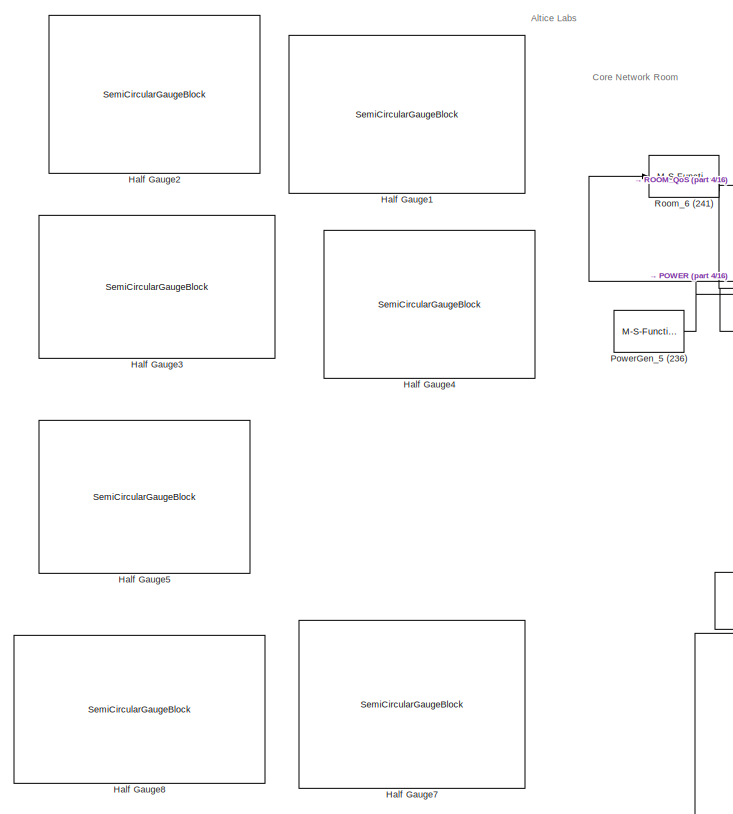
[diagram: root canvas - part 1/16, top left region]
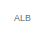
[diagram: root canvas - part 2/16, top center region]
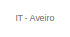
[diagram: root canvas - part 3/16, top center region]
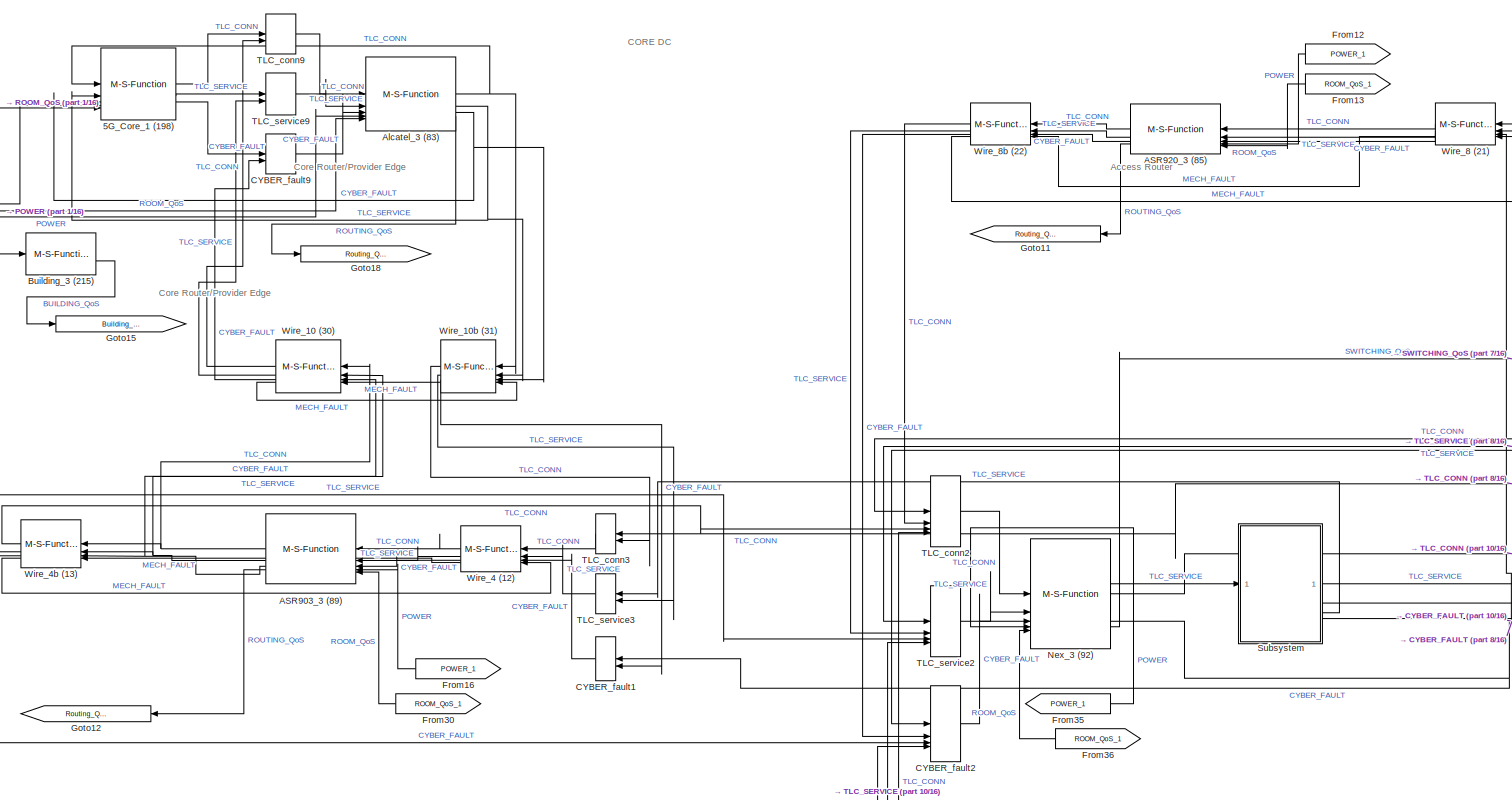
[diagram: root canvas - part 4/16, top left region]
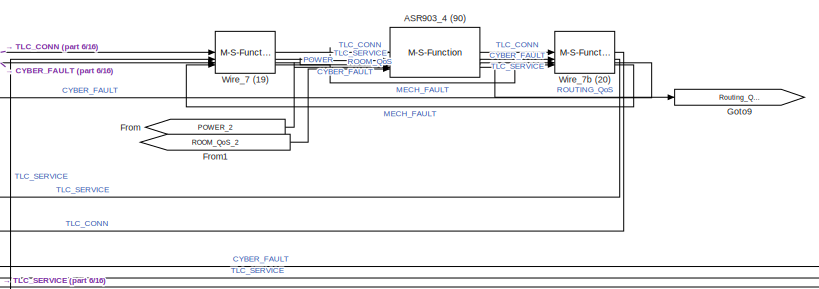
[diagram: root canvas - part 5/16, top right region]
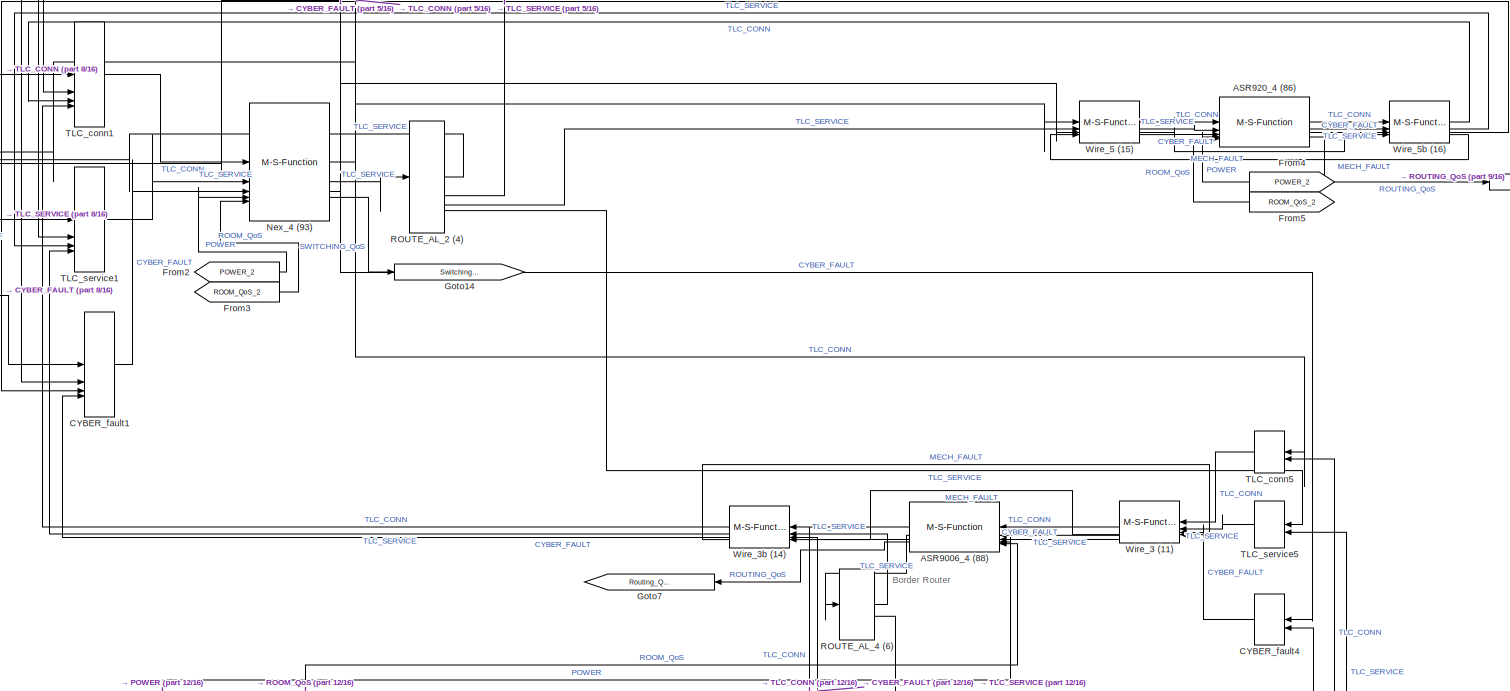
[diagram: root canvas - part 6/16, middle right region]
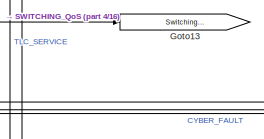
[diagram: root canvas - part 7/16, top center region]
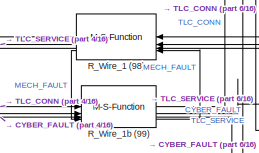
[diagram: root canvas - part 8/16, top center region]
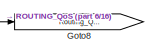
[diagram: root canvas - part 9/16, top right region]
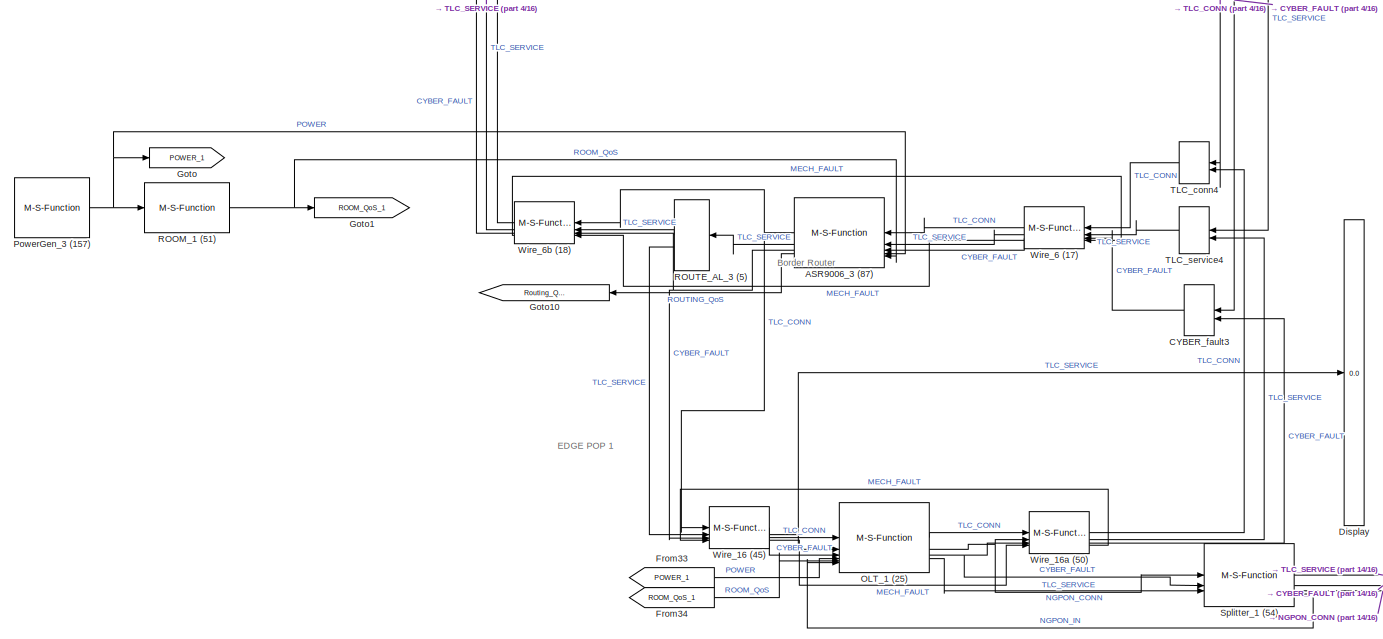
[diagram: root canvas - part 10/16, central region]
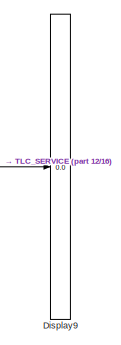
[diagram: root canvas - part 11/16, middle right region]
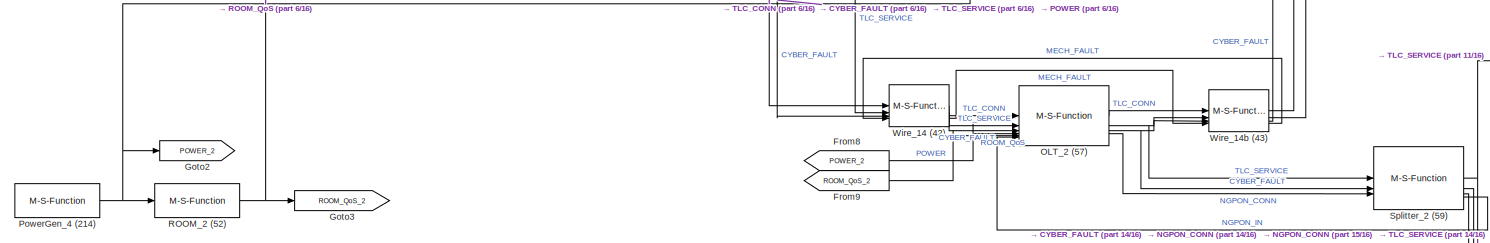
[diagram: root canvas - part 12/16, middle right region]
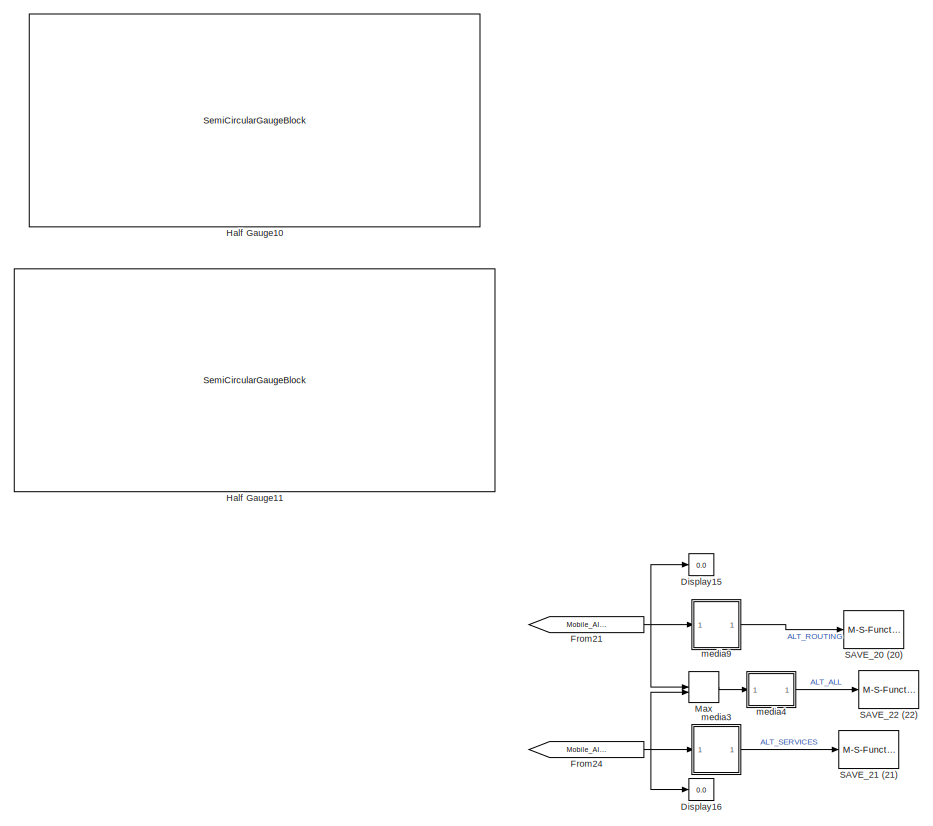
[diagram: root canvas - part 13/16, bottom left region]
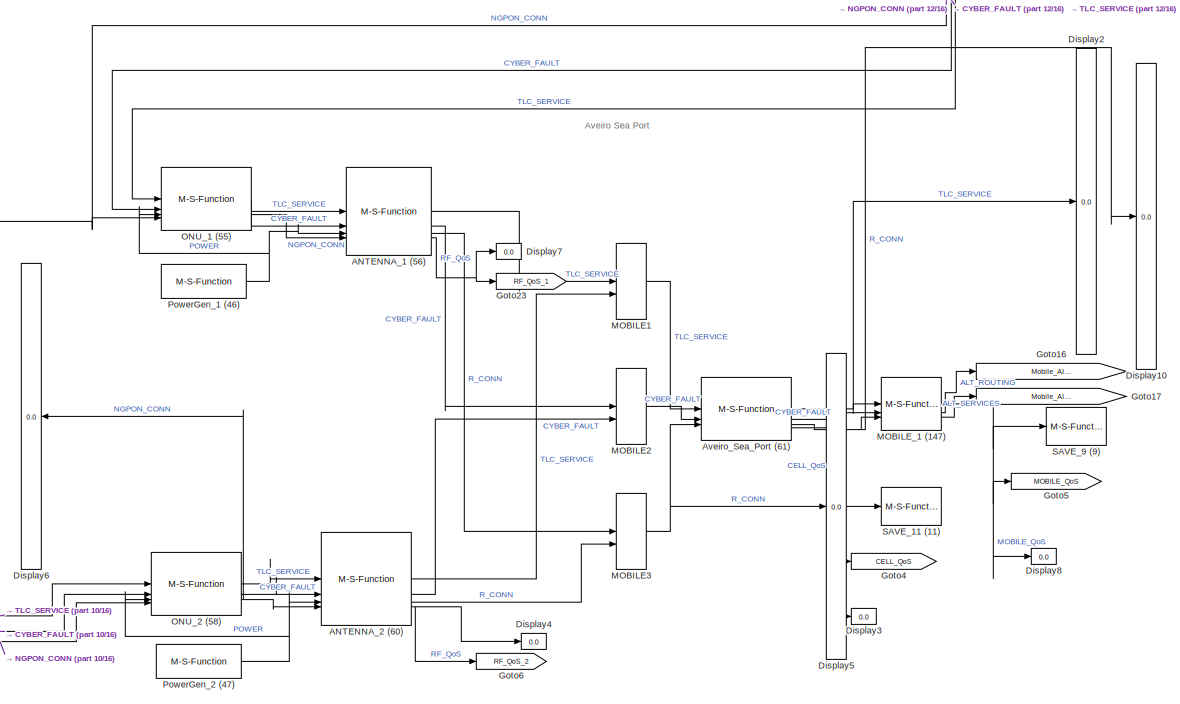
[diagram: root canvas - part 14/16, bottom right region]
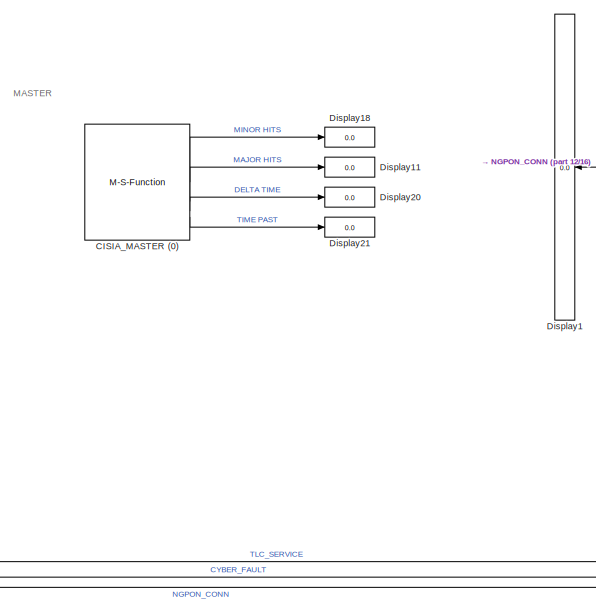
[diagram: root canvas - part 15/16, bottom right region]
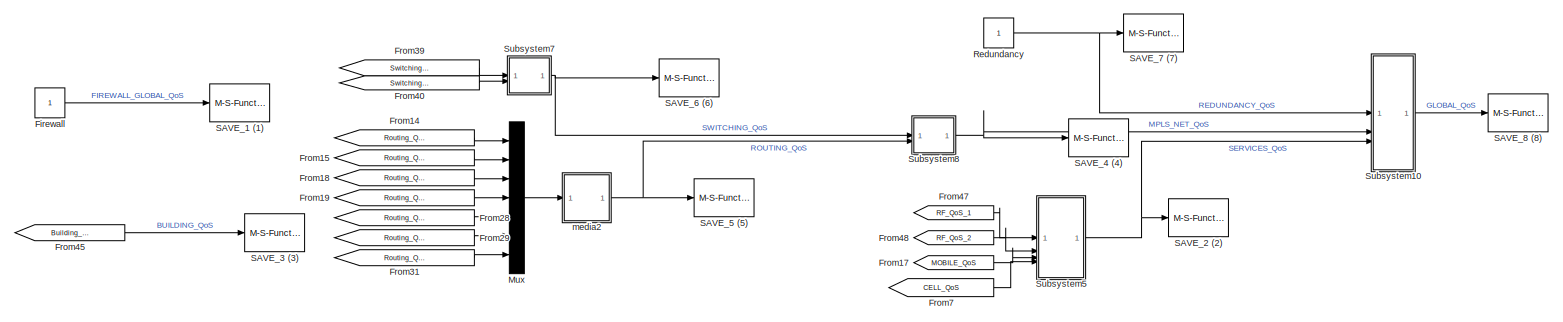
[diagram: root canvas - part 16/16, bottom center region]
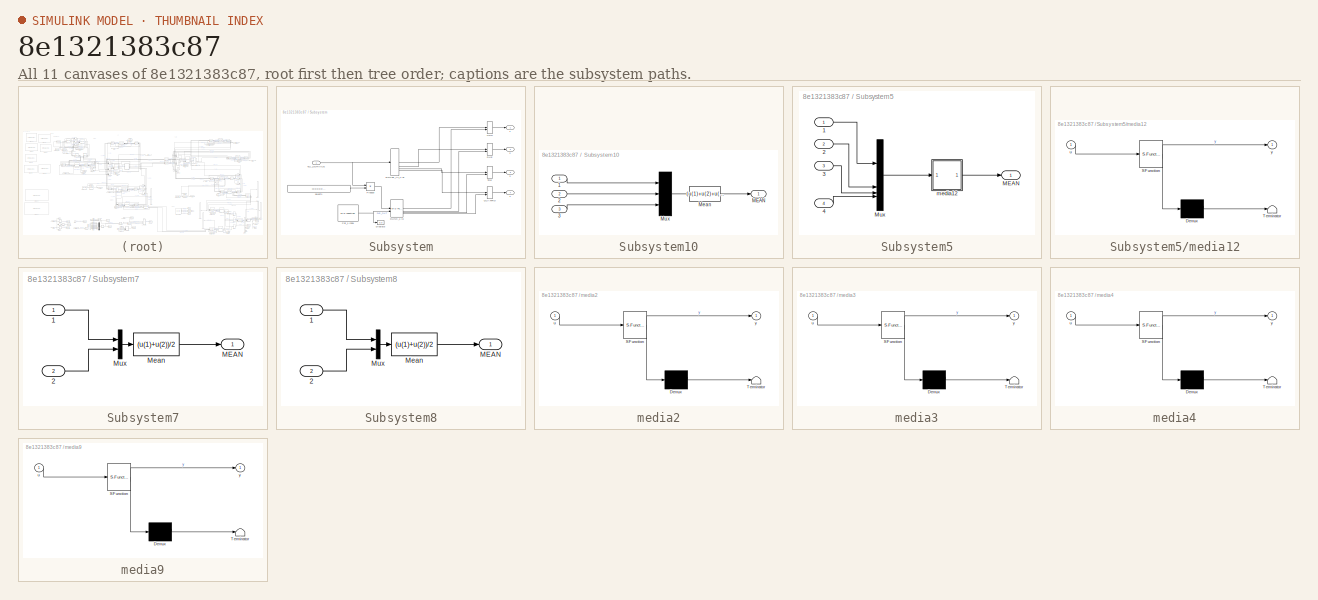
[diagram: thumbnail index - all 11 canvases of the model, root first then tree order]
MODEL slx_8e1321383c87
KIND model
CONFIG AbsTol = auto
CONFIG EnableMultiTasking = off
CONFIG FixedStep = auto
CONFIG MaxStep = auto
CONFIG MinStep = auto
CONFIG RelTol = 1e-3
CONFIG SampleTimeConstraint = Unconstrained
CONFIG SolverName = VariableStepAuto
CONFIG StartTime = 0.0
CONFIG StopTime = 2.0
BLOCK [M-S-Function] 5G_Core_1 (198)
  FunctionName = cisia_msfun
  Parameters = Parameter1, Parameter2, Parameter3, resources, Parameter10, codeupdate, step_received, step_computed, dynamic_computed, step_sended, id_entity, id_project, id_type, name_type, color
BLOCK [M-S-Function] ANTENNA_1 (56)
  FunctionName = cisia_msfun
  Parameters = Parameter1, Parameter2, Parameter3, resources, Parameter10, codeupdate, step_received, step_computed, dynamic_computed, step_sended, id_entity, id_project, id_type, name_type, color
BLOCK [M-S-Function] ANTENNA_2 (60)
  FunctionName = cisia_msfun
  Parameters = Parameter1, Parameter2, Parameter3, resources, Parameter10, codeupdate, step_received, step_computed, dynamic_computed, step_sended, id_entity, id_project, id_type, name_type, color
BLOCK [M-S-Function] ASR9006_3 (87)
  FunctionName = cisia_msfun
  NameLocation = top
  Parameters = Parameter1, Parameter2, Parameter3, resources, Parameter10, codeupdate, step_received, step_computed, dynamic_computed, step_sended, id_entity, id_project, id_type, name_type, color
BLOCK [M-S-Function] ASR9006_4 (88)
  FunctionName = cisia_msfun
  Parameters = Parameter1, Parameter2, Parameter3, resources, Parameter10, codeupdate, step_received, step_computed, dynamic_computed, step_sended, id_entity, id_project, id_type, name_type, color
BLOCK [M-S-Function] ASR903_3 (89)
  FunctionName = cisia_msfun
  NameLocation = top
  Parameters = Parameter1, Parameter2, Parameter3, resources, Parameter10, codeupdate, step_received, step_computed, dynamic_computed, step_sended, id_entity, id_project, id_type, name_type, color
BLOCK [M-S-Function] ASR903_4 (90)
  FunctionName = cisia_msfun
  NameLocation = top
  Parameters = Parameter1, Parameter2, Parameter3, resources, Parameter10, codeupdate, step_received, step_computed, dynamic_computed, step_sended, id_entity, id_project, id_type, name_type, color
BLOCK [M-S-Function] ASR920_3 (85)
  FunctionName = cisia_msfun
  NameLocation = top
  Parameters = Parameter1, Parameter2, Parameter3, resources, Parameter10, codeupdate, step_received, step_computed, dynamic_computed, step_sended, id_entity, id_project, id_type, name_type, color
BLOCK [M-S-Function] ASR920_4 (86)
  FunctionName = cisia_msfun
  NameLocation = top
  Parameters = Parameter1, Parameter2, Parameter3, resources, Parameter10, codeupdate, step_received, step_computed, dynamic_computed, step_sended, id_entity, id_project, id_type, name_type, color
BLOCK [M-S-Function] Alcatel_3 (83)
  FunctionName = cisia_msfun
  Parameters = Parameter1, Parameter2, Parameter3, resources, Parameter10, codeupdate, step_received, step_computed, dynamic_computed, step_sended, id_entity, id_project, id_type, name_type, color
BLOCK [M-S-Function] Aveiro_Sea_Port (61)
  FunctionName = cisia_msfun
  Parameters = Parameter1, Parameter2, Parameter3, resources, Parameter10, codeupdate, step_received, step_computed, dynamic_computed, step_sended, id_entity, id_project, id_type, name_type, color
BLOCK [M-S-Function] Building_3 (215)
  FunctionName = cisia_msfun
  Parameters = Parameter1, Parameter2, Parameter3, resources, Parameter10, codeupdate, step_received, step_computed, dynamic_computed, step_sended, id_entity, id_project, id_type, name_type, color
BLOCK [M-S-Function] CISIA_MASTER (0)
  FunctionName = cisia_msfun
  Parameters = Parameter1, Parameter2, Parameter3, resources, Parameter4, Parameter5, Parameter6, Parameter7, Parameter8, Parameter9,Parameter11,Parameter12
BLOCK [MinMax] CYBER_fault1
  Function = max
  Inputs = 2
  NameLocation = top
BLOCK [MinMax] CYBER_fault1 
  Function = max
  Inputs = 4
BLOCK [MinMax] CYBER_fault2
  Function = max
  Inputs = 4
BLOCK [MinMax] CYBER_fault3
  Function = max
  Inputs = 2
  NameLocation = top
BLOCK [MinMax] CYBER_fault4
  Function = max
  Inputs = 2
  NameLocation = top
BLOCK [MinMax] CYBER_fault9
  Function = max
  Inputs = 2
BLOCK [Display] Display
  Decimation = 1
BLOCK [Display] Display1
  Decimation = 1
  NameLocation = top
BLOCK [Display] Display10
  Decimation = 1
BLOCK [Display] Display11
  Decimation = 1
BLOCK [Display] Display15
  Decimation = 1
BLOCK [Display] Display16
  Decimation = 1
BLOCK [Display] Display18
  Decimation = 1
BLOCK [Display] Display2
  Decimation = 1
BLOCK [Display] Display20
  Decimation = 1
BLOCK [Display] Display21
  Decimation = 1
BLOCK [Display] Display3
  Decimation = 1
BLOCK [Display] Display4
  Decimation = 1
BLOCK [Display] Display5
  Decimation = 1
BLOCK [Display] Display6
  Decimation = 1
  NameLocation = top
BLOCK [Display] Display7
  Decimation = 1
BLOCK [Display] Display8
  Decimation = 1
BLOCK [Display] Display9
  Decimation = 1
BLOCK [Constant] Firewall
BLOCK [From] From
  GotoTag = POWER_2
  IconDisplay = Tag and signal name
BLOCK [From] From1
  GotoTag = ROOM_QoS_2
  IconDisplay = Tag and signal name
BLOCK [From] From12
  GotoTag = POWER_1
  NameLocation = top
  TagVisibility = global
BLOCK [From] From13
  GotoTag = ROOM_QoS_1
  NameLocation = top
BLOCK [From] From14
  GotoTag = Routing_QoS_9006_3
BLOCK [From] From15
  GotoTag = Routing_QoS_9006_2
BLOCK [From] From16
  GotoTag = POWER_1
  NameLocation = top
  TagVisibility = global
BLOCK [From] From17
  GotoTag = MOBILE_QoS
BLOCK [From] From18
  GotoTag = Routing_QoS_903_3
BLOCK [From] From19
  GotoTag = Routing_QoS_903_4
BLOCK [From] From2
  GotoTag = POWER_2
BLOCK [From] From21
  GotoTag = Mobile_Alt_Route_1
BLOCK [From] From24
  GotoTag = Mobile_Alt_Serv_1
BLOCK [From] From28
  GotoTag = Routing_QoS_920_3
BLOCK [From] From29
  GotoTag = Routing_QoS_920_4
BLOCK [From] From3
  GotoTag = ROOM_QoS_2
BLOCK [From] From30
  GotoTag = ROOM_QoS_1
  NameLocation = top
BLOCK [From] From31
  GotoTag = Routing_QoS_Alcatel_3
BLOCK [From] From33
  GotoTag = POWER_1
  TagVisibility = global
BLOCK [From] From34
  GotoTag = ROOM_QoS_1
BLOCK [From] From35
  GotoTag = POWER_1
  TagVisibility = global
BLOCK [From] From36
  GotoTag = ROOM_QoS_1
  NameLocation = top
BLOCK [From] From39
  GotoTag = Switching_QoS_Nex_3
BLOCK [From] From4
  GotoTag = POWER_2
  NameLocation = top
BLOCK [From] From40
  GotoTag = Switching_QoS_Nex_4
BLOCK [From] From45
  GotoTag = Building_QoS_1
BLOCK [From] From47
  GotoTag = RF_QoS_1
BLOCK [From] From48
  GotoTag = RF_QoS_2
BLOCK [From] From5
  GotoTag = ROOM_QoS_2
  NameLocation = top
BLOCK [From] From7
  GotoTag = CELL_QoS
BLOCK [From] From8
  GotoTag = POWER_2
BLOCK [From] From9
  GotoTag = ROOM_QoS_2
BLOCK [Goto] Goto
  GotoTag = POWER_1
  TagVisibility = global
BLOCK [Goto] Goto1
  GotoTag = ROOM_QoS_1
BLOCK [Goto] Goto10
  GotoTag = Routing_QoS_9006_3
  NameLocation = top
BLOCK [Goto] Goto11
  GotoTag = Routing_QoS_920_3
  NameLocation = top
BLOCK [Goto] Goto12
  GotoTag = Routing_QoS_903_3
  NameLocation = top
BLOCK [Goto] Goto13
  GotoTag = Switching_QoS_Nex_3
BLOCK [Goto] Goto14
  GotoTag = Switching_QoS_Nex_4
BLOCK [Goto] Goto15
  GotoTag = Building_QoS_1
BLOCK [Goto] Goto16
  GotoTag = Mobile_Alt_Route_1
BLOCK [Goto] Goto17
  GotoTag = Mobile_Alt_Serv_1
BLOCK [Goto] Goto18
  GotoTag = Routing_QoS_Alcatel_3
BLOCK [Goto] Goto2
  GotoTag = POWER_2
BLOCK [Goto] Goto23
  GotoTag = RF_QoS_1
BLOCK [Goto] Goto3
  GotoTag = ROOM_QoS_2
BLOCK [Goto] Goto4
  GotoTag = CELL_QoS
BLOCK [Goto] Goto5
  GotoTag = MOBILE_QoS
BLOCK [Goto] Goto6
  GotoTag = RF_QoS_2
BLOCK [Goto] Goto7
  GotoTag = Routing_QoS_9006_2
  NameLocation = top
BLOCK [Goto] Goto8
  GotoTag = Routing_QoS_920_4
BLOCK [Goto] Goto9
  GotoTag = Routing_QoS_903_4
BLOCK [SemiCircularGaugeBlock] Half Gauge1
  ScaleMax = 1
BLOCK [SemiCircularGaugeBlock] Half Gauge10
  ScaleMax = 1
BLOCK [SemiCircularGaugeBlock] Half Gauge11
  ScaleMax = 1
BLOCK [SemiCircularGaugeBlock] Half Gauge2
  ScaleMax = 1
BLOCK [SemiCircularGaugeBlock] Half Gauge3
  ScaleMax = 1
BLOCK [SemiCircularGaugeBlock] Half Gauge4
  ScaleMax = 1
BLOCK [SemiCircularGaugeBlock] Half Gauge5
  ScaleMax = 1
BLOCK [SemiCircularGaugeBlock] Half Gauge7
  ScaleMax = 1
BLOCK [SemiCircularGaugeBlock] Half Gauge8
  ScaleMax = 1
BLOCK [MinMax] MOBILE1
  Function = max
  Inputs = 2
BLOCK [MinMax] MOBILE2
  Function = max
  Inputs = 2
BLOCK [MinMax] MOBILE3
  Function = max
  Inputs = 2
BLOCK [M-S-Function] MOBILE_1 (147)
  FunctionName = cisia_msfun
  Parameters = Parameter1, Parameter2, Parameter3, resources, Parameter10, codeupdate, step_received, step_computed, dynamic_computed, step_sended, id_entity, id_project, id_type, name_type, color
BLOCK [MinMax] Max
  Function = max
  Inputs = 2
BLOCK [Mux] Mux
  DisplayOption = bar
  Inputs = 7
BLOCK [M-S-Function] Nex_3 (92)
  FunctionName = cisia_msfun
  Parameters = Parameter1, Parameter2, Parameter3, resources, Parameter10, codeupdate, step_received, step_computed, dynamic_computed, step_sended, id_entity, id_project, id_type, name_type, color
BLOCK [M-S-Function] Nex_4 (93)
  FunctionName = cisia_msfun
  Parameters = Parameter1, Parameter2, Parameter3, resources, Parameter10, codeupdate, step_received, step_computed, dynamic_computed, step_sended, id_entity, id_project, id_type, name_type, color
BLOCK [M-S-Function] OLT_1 (25)
  FunctionName = cisia_msfun
  Parameters = Parameter1, Parameter2, Parameter3, resources, Parameter10, codeupdate, step_received, step_computed, dynamic_computed, step_sended, id_entity, id_project, id_type, name_type, color
BLOCK [M-S-Function] OLT_2 (57)
  FunctionName = cisia_msfun
  Parameters = Parameter1, Parameter2, Parameter3, resources, Parameter10, codeupdate, step_received, step_computed, dynamic_computed, step_sended, id_entity, id_project, id_type, name_type, color
BLOCK [M-S-Function] ONU_1 (55)
  FunctionName = cisia_msfun
  Parameters = Parameter1, Parameter2, Parameter3, resources, Parameter10, codeupdate, step_received, step_computed, dynamic_computed, step_sended, id_entity, id_project, id_type, name_type, color
BLOCK [M-S-Function] ONU_2 (58)
  FunctionName = cisia_msfun
  Parameters = Parameter1, Parameter2, Parameter3, resources, Parameter10, codeupdate, step_received, step_computed, dynamic_computed, step_sended, id_entity, id_project, id_type, name_type, color
BLOCK [M-S-Function] PowerGen_1 (46)
  FunctionName = cisia_msfun
  Parameters = Parameter1, Parameter2, Parameter3, resources, Parameter10, codeupdate, step_received, step_computed, dynamic_computed, step_sended, id_entity, id_project, id_type, name_type, color
BLOCK [M-S-Function] PowerGen_2 (47)
  FunctionName = cisia_msfun
  Parameters = Parameter1, Parameter2, Parameter3, resources, Parameter10, codeupdate, step_received, step_computed, dynamic_computed, step_sended, id_entity, id_project, id_type, name_type, color
BLOCK [M-S-Function] PowerGen_3 (157)
  FunctionName = cisia_msfun
  Parameters = Parameter1, Parameter2, Parameter3, resources, Parameter10, codeupdate, step_received, step_computed, dynamic_computed, step_sended, id_entity, id_project, id_type, name_type, color
BLOCK [M-S-Function] PowerGen_4 (214)
  FunctionName = cisia_msfun
  Parameters = Parameter1, Parameter2, Parameter3, resources, Parameter10, codeupdate, step_received, step_computed, dynamic_computed, step_sended, id_entity, id_project, id_type, name_type, color
BLOCK [M-S-Function] PowerGen_5 (236)
  FunctionName = cisia_msfun
  Parameters = Parameter1, Parameter2, Parameter3, resources, Parameter10, codeupdate, step_received, step_computed, dynamic_computed, step_sended, id_entity, id_project, id_type, name_type, color
BLOCK [M-S-Function] ROOM_1 (51)
  FunctionName = cisia_msfun
  Parameters = Parameter1, Parameter2, Parameter3, resources, Parameter10, codeupdate, step_received, step_computed, dynamic_computed, step_sended, id_entity, id_project, id_type, name_type, color
BLOCK [M-S-Function] ROOM_2 (52)
  FunctionName = cisia_msfun
  Parameters = Parameter1, Parameter2, Parameter3, resources, Parameter10, codeupdate, step_received, step_computed, dynamic_computed, step_sended, id_entity, id_project, id_type, name_type, color
BLOCK [M-S-Function] ROUTE_AL_2 (4)
  FunctionName = cisia_msfun
  Parameters = Parameter1, Parameter2, Parameter3, Parameter4, Parameter5, Parameter6, Parameter7
BLOCK [M-S-Function] ROUTE_AL_3 (5)
  FunctionName = cisia_msfun
  NameLocation = top
  Parameters = Parameter1, Parameter2, Parameter3, Parameter4, Parameter5, Parameter6, Parameter7
BLOCK [M-S-Function] ROUTE_AL_4 (6)
  FunctionName = cisia_msfun
  Parameters = Parameter1, Parameter2, Parameter3, Parameter4, Parameter5, Parameter6, Parameter7
BLOCK [M-S-Function] R_Wire_1 (98)
  FunctionName = cisia_msfun
  NameLocation = top
  Parameters = Parameter1, Parameter2, Parameter3, resources, Parameter10, codeupdate, step_received, step_computed, dynamic_computed, step_sended, id_entity, id_project, id_type, name_type, color
BLOCK [M-S-Function] R_Wire_1b (99)
  FunctionName = cisia_msfun
  Parameters = Parameter1, Parameter2, Parameter3, resources, Parameter10, codeupdate, step_received, step_computed, dynamic_computed, step_sended, id_entity, id_project, id_type, name_type, color
BLOCK [Constant] Redundancy
BLOCK [M-S-Function] Room_6 (241)
  FunctionName = cisia_msfun
  Parameters = Parameter1, Parameter2, Parameter3, resources, Parameter10, codeupdate, step_received, step_computed, dynamic_computed, step_sended, id_entity, id_project, id_type, name_type, color
BLOCK [M-S-Function] SAVE_1 (1)
  FunctionName = cisia_msfun
  Parameters = Parameter1, Parameter2, Parameter3, Parameter4,Parameter5,Parameter6,Parameter7
BLOCK [M-S-Function] SAVE_11 (11)
  FunctionName = cisia_msfun
  Parameters = Parameter1, Parameter2, Parameter3, Parameter4,Parameter5,Parameter6,Parameter7
BLOCK [M-S-Function] SAVE_2 (2)
  FunctionName = cisia_msfun
  Parameters = Parameter1, Parameter2, Parameter3, Parameter4,Parameter5,Parameter6,Parameter7
BLOCK [M-S-Function] SAVE_20 (20)
  FunctionName = cisia_msfun
  Parameters = Parameter1, Parameter2, Parameter3, Parameter4,Parameter5,Parameter6,Parameter7
BLOCK [M-S-Function] SAVE_21 (21)
  FunctionName = cisia_msfun
  Parameters = Parameter1, Parameter2, Parameter3, Parameter4,Parameter5,Parameter6,Parameter7
BLOCK [M-S-Function] SAVE_22 (22)
  FunctionName = cisia_msfun
  Parameters = Parameter1, Parameter2, Parameter3, Parameter4,Parameter5,Parameter6,Parameter7
BLOCK [M-S-Function] SAVE_3 (3)
  FunctionName = cisia_msfun
  Parameters = Parameter1, Parameter2, Parameter3, Parameter4,Parameter5,Parameter6,Parameter7
BLOCK [M-S-Function] SAVE_4 (4)
  FunctionName = cisia_msfun
  Parameters = Parameter1, Parameter2, Parameter3, Parameter4,Parameter5,Parameter6,Parameter7
BLOCK [M-S-Function] SAVE_5 (5)
  FunctionName = cisia_msfun
  Parameters = Parameter1, Parameter2, Parameter3, Parameter4,Parameter5,Parameter6,Parameter7
BLOCK [M-S-Function] SAVE_6 (6)
  FunctionName = cisia_msfun
  Parameters = Parameter1, Parameter2, Parameter3, Parameter4,Parameter5,Parameter6,Parameter7
BLOCK [M-S-Function] SAVE_7 (7)
  FunctionName = cisia_msfun
  Parameters = Parameter1, Parameter2, Parameter3, Parameter4,Parameter5,Parameter6,Parameter7
BLOCK [M-S-Function] SAVE_8 (8)
  FunctionName = cisia_msfun
  Parameters = Parameter1, Parameter2, Parameter3, Parameter4,Parameter5,Parameter6,Parameter7
BLOCK [M-S-Function] SAVE_9 (9)
  FunctionName = cisia_msfun
  Parameters = Parameter1, Parameter2, Parameter3, Parameter4,Parameter5,Parameter6,Parameter7
BLOCK [M-S-Function] Splitter_1 (54)
  FunctionName = cisia_msfun
  Parameters = Parameter1, Parameter2, Parameter3, resources, Parameter10, codeupdate, step_received, step_computed, dynamic_computed, step_sended, id_entity, id_project, id_type, name_type, color
BLOCK [M-S-Function] Splitter_2 (59)
  FunctionName = cisia_msfun
  Parameters = Parameter1, Parameter2, Parameter3, resources, Parameter10, codeupdate, step_received, step_computed, dynamic_computed, step_sended, id_entity, id_project, id_type, name_type, color
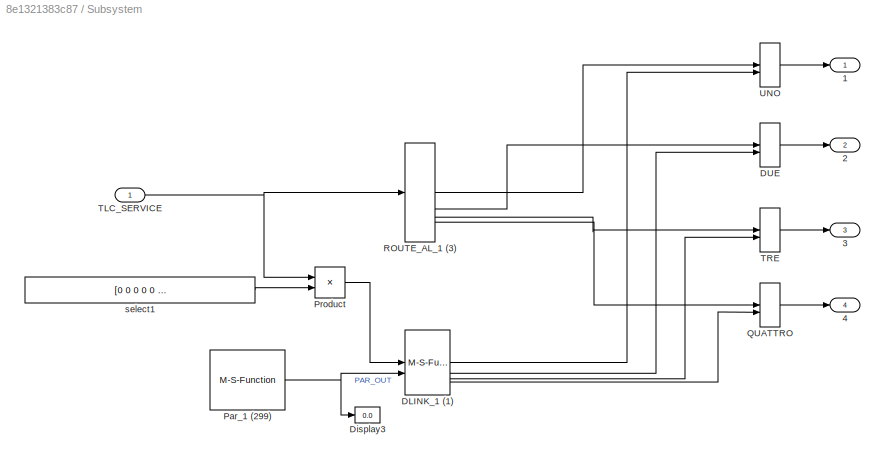
BLOCK [SubSystem] Subsystem
BLOCK [Outport] Subsystem/1
BLOCK [Outport] Subsystem/2
  NameLocation = top
  Port = 2
BLOCK [Outport] Subsystem/3
  NameLocation = top
  Port = 3
BLOCK [Outport] Subsystem/4
  NameLocation = top
  Port = 4
BLOCK [M-S-Function] Subsystem/DLINK_1 (1)
  FunctionName = cisia_msfun
  Parameters = Parameter1, Parameter2, Parameter3, Parameter4, Parameter5, Parameter6, Parameter7
BLOCK [MinMax] Subsystem/DUE
  Function = max
  Inputs = 2
BLOCK [Display] Subsystem/Display3
  Decimation = 1
BLOCK [M-S-Function] Subsystem/Par_1 (299)
  FunctionName = cisia_msfun
  Parameters = Parameter1, Parameter2, Parameter3, resources, Parameter10, codeupdate, step_received, step_computed, dynamic_computed, step_sended, id_entity, id_project, id_type, name_type, color
BLOCK [Product] Subsystem/Product
BLOCK [MinMax] Subsystem/QUATTRO
  Function = max
  Inputs = 2
BLOCK [M-S-Function] Subsystem/ROUTE_AL_1 (3)
  FunctionName = cisia_msfun
  Parameters = Parameter1, Parameter2, Parameter3, Parameter4, Parameter5, Parameter6, Parameter7
BLOCK [Inport] Subsystem/TLC_SERVICE
BLOCK [MinMax] Subsystem/TRE
  Function = max
  Inputs = 2
BLOCK [MinMax] Subsystem/UNO
  Function = max
  Inputs = 2
BLOCK [Constant] Subsystem/select1
  Value = [0 0 0 0 0 0 0 1 0 0 0 0 0 0 0 0 0 0 0 0]
BLOCK [SubSystem] Subsystem10
BLOCK [Inport] Subsystem10/1
BLOCK [Inport] Subsystem10/2
  Port = 2
BLOCK [Inport] Subsystem10/3
  Port = 3
BLOCK [Outport] Subsystem10/MEAN
  VectorParamsAs1DForOutWhenUnconnected = off
BLOCK [Fcn] Subsystem10/Mean
  Expr = (u(1)+u(2)+u(3))/3
BLOCK [Mux] Subsystem10/Mux
  DisplayOption = bar
  Inputs = 3
BLOCK [SubSystem] Subsystem5
BLOCK [Inport] Subsystem5/1
BLOCK [Inport] Subsystem5/2
  Port = 2
BLOCK [Inport] Subsystem5/3
  Port = 3
BLOCK [Inport] Subsystem5/4
  Port = 4
BLOCK [Outport] Subsystem5/MEAN
  VectorParamsAs1DForOutWhenUnconnected = off
BLOCK [Mux] Subsystem5/Mux
  DisplayOption = bar
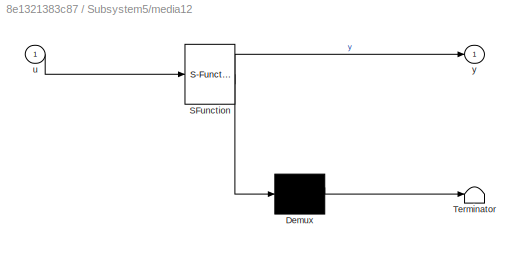
BLOCK [SubSystem] Subsystem5/media12
  ErrorFcn = Stateflow.Translate.translate
  LibrarySourceBlock = simulink/User-Defined\nFunctions/MATLAB Function
  PermitHierarchicalResolution = ExplicitOnly
  SFBlockType = MATLAB Function
  TreatAsAtomicUnit = on
BLOCK [Demux] Subsystem5/media12/ Demux 
  Outputs = 1
BLOCK [S-Function] Subsystem5/media12/ SFunction 
  EnableBusSupport = on
  FunctionName = sf_sfun
  PortCounts = [1 2]
  SFcnIsStateOwnerBlock = off
  SFunctionDeploymentMode = off
  Tag = Stateflow S-Function 13
BLOCK [Terminator] Subsystem5/media12/ Terminator 
BLOCK [Inport] Subsystem5/media12/u
BLOCK [Outport] Subsystem5/media12/y
BLOCK [SubSystem] Subsystem7
BLOCK [Inport] Subsystem7/1
BLOCK [Inport] Subsystem7/2
  Port = 2
BLOCK [Outport] Subsystem7/MEAN
  VectorParamsAs1DForOutWhenUnconnected = off
BLOCK [Fcn] Subsystem7/Mean
  Expr = (u(1)+u(2))/2
BLOCK [Mux] Subsystem7/Mux
  DisplayOption = bar
  Inputs = 2
BLOCK [SubSystem] Subsystem8
BLOCK [Inport] Subsystem8/1
BLOCK [Inport] Subsystem8/2
  Port = 2
BLOCK [Outport] Subsystem8/MEAN
  VectorParamsAs1DForOutWhenUnconnected = off
BLOCK [Fcn] Subsystem8/Mean
  Expr = (u(1)+u(2))/2
BLOCK [Mux] Subsystem8/Mux
  DisplayOption = bar
  Inputs = 2
BLOCK [MinMax] TLC_conn1
  Function = max
  Inputs = 4
BLOCK [MinMax] TLC_conn2
  Function = max
  Inputs = 4
BLOCK [MinMax] TLC_conn3
  Function = max
  Inputs = 2
  NameLocation = top
BLOCK [MinMax] TLC_conn4
  Function = max
  Inputs = 2
  NameLocation = top
BLOCK [MinMax] TLC_conn5
  Function = max
  Inputs = 2
  NameLocation = top
BLOCK [MinMax] TLC_conn9
  Function = max
  Inputs = 2
BLOCK [MinMax] TLC_service1
  Function = max
  Inputs = 4
BLOCK [MinMax] TLC_service2
  Function = max
  Inputs = 4
BLOCK [MinMax] TLC_service3
  Function = max
  Inputs = 2
  NameLocation = top
BLOCK [MinMax] TLC_service4
  Function = max
  Inputs = 2
  NameLocation = top
BLOCK [MinMax] TLC_service5
  Function = max
  Inputs = 2
  NameLocation = top
BLOCK [MinMax] TLC_service9
  Function = max
  Inputs = 2
BLOCK [M-S-Function] Wire_10 (30)
  FunctionName = cisia_msfun
  NameLocation = top
  Parameters = Parameter1, Parameter2, Parameter3, resources, Parameter10, codeupdate, step_received, step_computed, dynamic_computed, step_sended, id_entity, id_project, id_type, name_type, color
BLOCK [M-S-Function] Wire_10b (31)
  FunctionName = cisia_msfun
  NameLocation = top
  Parameters = Parameter1, Parameter2, Parameter3, resources, Parameter10, codeupdate, step_received, step_computed, dynamic_computed, step_sended, id_entity, id_project, id_type, name_type, color
BLOCK [M-S-Function] Wire_14 (42)
  FunctionName = cisia_msfun
  Parameters = Parameter1, Parameter2, Parameter3, resources, Parameter10, codeupdate, step_received, step_computed, dynamic_computed, step_sended, id_entity, id_project, id_type, name_type, color
BLOCK [M-S-Function] Wire_14b (43)
  FunctionName = cisia_msfun
  Parameters = Parameter1, Parameter2, Parameter3, resources, Parameter10, codeupdate, step_received, step_computed, dynamic_computed, step_sended, id_entity, id_project, id_type, name_type, color
BLOCK [M-S-Function] Wire_16 (45)
  FunctionName = cisia_msfun
  Parameters = Parameter1, Parameter2, Parameter3, resources, Parameter10, codeupdate, step_received, step_computed, dynamic_computed, step_sended, id_entity, id_project, id_type, name_type, color
BLOCK [M-S-Function] Wire_16a (50)
  FunctionName = cisia_msfun
  Parameters = Parameter1, Parameter2, Parameter3, resources, Parameter10, codeupdate, step_received, step_computed, dynamic_computed, step_sended, id_entity, id_project, id_type, name_type, color
BLOCK [M-S-Function] Wire_3 (11)
  FunctionName = cisia_msfun
  NameLocation = top
  Parameters = Parameter1, Parameter2, Parameter3, resources, Parameter10, codeupdate, step_received, step_computed, dynamic_computed, step_sended, id_entity, id_project, id_type, name_type, color
BLOCK [M-S-Function] Wire_3b (14)
  FunctionName = cisia_msfun
  NameLocation = top
  Parameters = Parameter1, Parameter2, Parameter3, resources, Parameter10, codeupdate, step_received, step_computed, dynamic_computed, step_sended, id_entity, id_project, id_type, name_type, color
BLOCK [M-S-Function] Wire_4 (12)
  FunctionName = cisia_msfun
  NameLocation = top
  Parameters = Parameter1, Parameter2, Parameter3, resources, Parameter10, codeupdate, step_received, step_computed, dynamic_computed, step_sended, id_entity, id_project, id_type, name_type, color
BLOCK [M-S-Function] Wire_4b (13)
  FunctionName = cisia_msfun
  NameLocation = top
  Parameters = Parameter1, Parameter2, Parameter3, resources, Parameter10, codeupdate, step_received, step_computed, dynamic_computed, step_sended, id_entity, id_project, id_type, name_type, color
BLOCK [M-S-Function] Wire_5 (15)
  FunctionName = cisia_msfun
  Parameters = Parameter1, Parameter2, Parameter3, resources, Parameter10, codeupdate, step_received, step_computed, dynamic_computed, step_sended, id_entity, id_project, id_type, name_type, color
BLOCK [M-S-Function] Wire_5b (16)
  FunctionName = cisia_msfun
  Parameters = Parameter1, Parameter2, Parameter3, resources, Parameter10, codeupdate, step_received, step_computed, dynamic_computed, step_sended, id_entity, id_project, id_type, name_type, color
BLOCK [M-S-Function] Wire_6 (17)
  FunctionName = cisia_msfun
  NameLocation = top
  Parameters = Parameter1, Parameter2, Parameter3, resources, Parameter10, codeupdate, step_received, step_computed, dynamic_computed, step_sended, id_entity, id_project, id_type, name_type, color
BLOCK [M-S-Function] Wire_6b (18)
  FunctionName = cisia_msfun
  NameLocation = top
  Parameters = Parameter1, Parameter2, Parameter3, resources, Parameter10, codeupdate, step_received, step_computed, dynamic_computed, step_sended, id_entity, id_project, id_type, name_type, color
BLOCK [M-S-Function] Wire_7 (19)
  FunctionName = cisia_msfun
  Parameters = Parameter1, Parameter2, Parameter3, resources, Parameter10, codeupdate, step_received, step_computed, dynamic_computed, step_sended, id_entity, id_project, id_type, name_type, color
BLOCK [M-S-Function] Wire_7b (20)
  FunctionName = cisia_msfun
  Parameters = Parameter1, Parameter2, Parameter3, resources, Parameter10, codeupdate, step_received, step_computed, dynamic_computed, step_sended, id_entity, id_project, id_type, name_type, color
BLOCK [M-S-Function] Wire_8 (21)
  FunctionName = cisia_msfun
  NameLocation = top
  Parameters = Parameter1, Parameter2, Parameter3, resources, Parameter10, codeupdate, step_received, step_computed, dynamic_computed, step_sended, id_entity, id_project, id_type, name_type, color
BLOCK [M-S-Function] Wire_8b (22)
  FunctionName = cisia_msfun
  NameLocation = top
  Parameters = Parameter1, Parameter2, Parameter3, resources, Parameter10, codeupdate, step_received, step_computed, dynamic_computed, step_sended, id_entity, id_project, id_type, name_type, color
BLOCK [SubSystem] media2
  ErrorFcn = Stateflow.Translate.translate
  LibrarySourceBlock = simulink/User-Defined\nFunctions/MATLAB Function
  PermitHierarchicalResolution = ExplicitOnly
  SFBlockType = MATLAB Function
  TreatAsAtomicUnit = on
BLOCK [Demux] media2/ Demux 
  Outputs = 1
BLOCK [S-Function] media2/ SFunction 
  EnableBusSupport = on
  FunctionName = sf_sfun
  PortCounts = [1 2]
  SFcnIsStateOwnerBlock = off
  SFunctionDeploymentMode = off
  Tag = Stateflow S-Function 2
BLOCK [Terminator] media2/ Terminator 
BLOCK [Inport] media2/u
BLOCK [Outport] media2/y
BLOCK [SubSystem] media3
  ErrorFcn = Stateflow.Translate.translate
  LibrarySourceBlock = simulink/User-Defined\nFunctions/MATLAB Function
  PermitHierarchicalResolution = ExplicitOnly
  SFBlockType = MATLAB Function
  TreatAsAtomicUnit = on
BLOCK [Demux] media3/ Demux 
  Outputs = 1
BLOCK [S-Function] media3/ SFunction 
  EnableBusSupport = on
  FunctionName = sf_sfun
  PortCounts = [1 2]
  SFcnIsStateOwnerBlock = off
  SFunctionDeploymentMode = off
  Tag = Stateflow S-Function 3
BLOCK [Terminator] media3/ Terminator 
BLOCK [Inport] media3/u
BLOCK [Outport] media3/y
BLOCK [SubSystem] media4
  ErrorFcn = Stateflow.Translate.translate
  LibrarySourceBlock = simulink/User-Defined\nFunctions/MATLAB Function
  PermitHierarchicalResolution = ExplicitOnly
  SFBlockType = MATLAB Function
  TreatAsAtomicUnit = on
BLOCK [Demux] media4/ Demux 
  Outputs = 1
BLOCK [S-Function] media4/ SFunction 
  EnableBusSupport = on
  FunctionName = sf_sfun
  PortCounts = [1 2]
  SFcnIsStateOwnerBlock = off
  SFunctionDeploymentMode = off
  Tag = Stateflow S-Function 4
BLOCK [Terminator] media4/ Terminator 
BLOCK [Inport] media4/u
BLOCK [Outport] media4/y
BLOCK [SubSystem] media9
  ErrorFcn = Stateflow.Translate.translate
  LibrarySourceBlock = simulink/User-Defined\nFunctions/MATLAB Function
  PermitHierarchicalResolution = ExplicitOnly
  SFBlockType = MATLAB Function
  TreatAsAtomicUnit = on
BLOCK [Demux] media9/ Demux 
  Outputs = 1
BLOCK [S-Function] media9/ SFunction 
  EnableBusSupport = on
  FunctionName = sf_sfun
  PortCounts = [1 2]
  SFcnIsStateOwnerBlock = off
  SFunctionDeploymentMode = off
  Tag = Stateflow S-Function 10
BLOCK [Terminator] media9/ Terminator 
BLOCK [Inport] media9/u
BLOCK [Outport] media9/y
ANNOTATION (root): ALB
ANNOTATION (root): CORE DC
ANNOTATION (root): Aveiro Sea Port
ANNOTATION (root): IT - Aveiro
ANNOTATION (root): Access Router
ANNOTATION (root): Altice Labs
ANNOTATION (root): Border Router
ANNOTATION (root): Core Network Room
ANNOTATION (root): Core Router/Provider Edge
ANNOTATION (root): EDGE POP 1
ANNOTATION (root): MASTER
LINE 5G_Core_1 (198):1 -> TLC_conn9:1
LINE 5G_Core_1 (198):2 -> TLC_service9:1
LINE 5G_Core_1 (198):3 -> CYBER_fault9:1
LINE ANTENNA_1 (56):1 -> MOBILE1:1
LINE ANTENNA_1 (56):2 -> MOBILE2:1
LINE ANTENNA_1 (56):3 -> MOBILE3:1
NET ANTENNA_1 (56):4 -> Display7:1, Goto23:1
LINE ANTENNA_2 (60):1 -> MOBILE1:2
LINE ANTENNA_2 (60):2 -> MOBILE2:2
LINE ANTENNA_2 (60):3 -> MOBILE3:2
NET ANTENNA_2 (60):4 -> Display4:1, Goto6:1
NET ASR9006_3 (87):1 -> Wire_16 (45):1, Wire_6b (18):1
LINE ASR9006_3 (87):2 -> ROUTE_AL_3 (5):1
NET ASR9006_3 (87):3 -> Wire_16 (45):3, Wire_6b (18):3
LINE ASR9006_3 (87):4 -> Goto10:1
NET ASR9006_4 (88):1 -> Wire_14 (42):1, Wire_3b (14):1
LINE ASR9006_4 (88):2 -> ROUTE_AL_4 (6):1
NET ASR9006_4 (88):3 -> Wire_14 (42):3, Wire_3b (14):3
LINE ASR9006_4 (88):4 -> Goto7:1
NET ASR903_3 (89):1 -> Wire_10 (30):1, Wire_4b (13):1
NET ASR903_3 (89):2 -> Wire_10 (30):2, Wire_4b (13):2
NET ASR903_3 (89):3 -> Wire_10 (30):3, Wire_4b (13):3
LINE ASR903_3 (89):4 -> Goto12:1
LINE ASR903_4 (90):1 -> Wire_7b (20):1
LINE ASR903_4 (90):2 -> Wire_7b (20):2
LINE ASR903_4 (90):3 -> Wire_7b (20):3
LINE ASR903_4 (90):4 -> Goto9:1
LINE ASR920_3 (85):1 -> Wire_8b (22):1
LINE ASR920_3 (85):2 -> Wire_8b (22):2
LINE ASR920_3 (85):3 -> Wire_8b (22):3
LINE ASR920_3 (85):4 -> Goto11:1
LINE ASR920_4 (86):1 -> Wire_5b (16):1
LINE ASR920_4 (86):2 -> Wire_5b (16):2
LINE ASR920_4 (86):3 -> Wire_5b (16):3
LINE ASR920_4 (86):4 -> Goto8:1
NET Alcatel_3 (83):1 -> 5G_Core_1 (198):1, Wire_10b (31):1
NET Alcatel_3 (83):2 -> 5G_Core_1 (198):2, Wire_10b (31):2
NET Alcatel_3 (83):3 -> 5G_Core_1 (198):3, Wire_10b (31):3
LINE Alcatel_3 (83):4 -> Goto18:1
NET Aveiro_Sea_Port (61):1 -> Display2:1, MOBILE_1 (147):1
LINE Aveiro_Sea_Port (61):2 -> MOBILE_1 (147):2
NET Aveiro_Sea_Port (61):3 -> Display10:1, MOBILE_1 (147):3
NET Aveiro_Sea_Port (61):4 -> Display3:1, Goto4:1, SAVE_11 (11):1
LINE Building_3 (215):2 -> Goto15:1
LINE CISIA_MASTER (0):1 -> Display18:1
LINE CISIA_MASTER (0):2 -> Display11:1
LINE CISIA_MASTER (0):3 -> Display20:1
LINE CISIA_MASTER (0):4 -> Display21:1
LINE CYBER_fault1 :1 -> Nex_4 (93):3
LINE CYBER_fault1:1 -> Wire_4 (12):3
LINE CYBER_fault2:1 -> Nex_3 (92):3
LINE CYBER_fault3:1 -> Wire_6 (17):3
LINE CYBER_fault4:1 -> Wire_3 (11):3
LINE CYBER_fault9:1 -> Alcatel_3 (83):3
LINE Firewall:1 -> SAVE_1 (1):1
LINE From12:1 -> ASR920_3 (85):4
LINE From13:1 -> ASR920_3 (85):5
LINE From14:1 -> Mux:1
LINE From15:1 -> Mux:2
LINE From16:1 -> ASR903_3 (89):4
LINE From17:1 -> Subsystem5:3
LINE From18:1 -> Mux:3
LINE From19:1 -> Mux:4
LINE From1:1 -> ASR903_4 (90):5
NET From21:1 -> Display15:1, Max:1, media9:1
NET From24:1 -> Display16:1, Max:2, media3:1
LINE From28:1 -> Mux:5
LINE From29:1 -> Mux:6
LINE From2:1 -> Nex_4 (93):4
LINE From30:1 -> ASR903_3 (89):5
LINE From31:1 -> Mux:7
LINE From33:1 -> OLT_1 (25):4
LINE From34:1 -> OLT_1 (25):5
LINE From35:1 -> Nex_3 (92):4
LINE From36:1 -> Nex_3 (92):5
LINE From39:1 -> Subsystem7:1
LINE From3:1 -> Nex_4 (93):5
LINE From40:1 -> Subsystem7:2
LINE From45:1 -> SAVE_3 (3):1
LINE From47:1 -> Subsystem5:1
LINE From48:1 -> Subsystem5:2
LINE From4:1 -> ASR920_4 (86):4
LINE From5:1 -> ASR920_4 (86):5
LINE From7:1 -> Subsystem5:4
LINE From8:1 -> OLT_2 (57):4
LINE From9:1 -> OLT_2 (57):5
LINE From:1 -> ASR903_4 (90):4
LINE MOBILE1:1 -> Aveiro_Sea_Port (61):1
LINE MOBILE2:1 -> Aveiro_Sea_Port (61):2
NET MOBILE3:1 -> Aveiro_Sea_Port (61):3, Display5:1
NET MOBILE_1 (147):1 -> Display8:1, Goto5:1, SAVE_9 (9):1
LINE MOBILE_1 (147):2 -> Goto16:1
LINE MOBILE_1 (147):3 -> Goto17:1
LINE Max:1 -> media4:1
LINE Mux:1 -> media2:1
NET Nex_3 (92):1 -> R_Wire_1b (99):1, TLC_conn3:1, TLC_conn4:1, Wire_8 (21):1
LINE Nex_3 (92):2 -> Subsystem:1
NET Nex_3 (92):3 -> CYBER_fault1:1, CYBER_fault3:1, R_Wire_1b (99):3, Wire_8 (21):3
LINE Nex_3 (92):4 -> Goto13:1
NET Nex_4 (93):1 -> R_Wire_1 (98):1, TLC_conn5:1, Wire_5 (15):1, Wire_7 (19):1
LINE Nex_4 (93):2 -> ROUTE_AL_2 (4):1
NET Nex_4 (93):3 -> CYBER_fault4:1, R_Wire_1 (98):3, Wire_5 (15):3, Wire_7 (19):3
LINE Nex_4 (93):4 -> Goto14:1
LINE OLT_1 (25):1 -> Wire_16a (50):1
NET OLT_1 (25):2 -> Splitter_1 (54):1, Wire_16a (50):2
NET OLT_1 (25):3 -> Splitter_1 (54):2, Wire_16a (50):3
LINE OLT_1 (25):4 -> Splitter_1 (54):3
LINE OLT_2 (57):1 -> Wire_14b (43):1
NET OLT_2 (57):2 -> Splitter_2 (59):1, Wire_14b (43):2
NET OLT_2 (57):3 -> Splitter_2 (59):2, Wire_14b (43):3
LINE OLT_2 (57):4 -> Splitter_2 (59):3
LINE ONU_1 (55):1 -> ANTENNA_1 (56):1
LINE ONU_1 (55):2 -> ANTENNA_1 (56):2
LINE ONU_1 (55):3 -> ANTENNA_1 (56):4
LINE ONU_2 (58):1 -> ANTENNA_2 (60):1
LINE ONU_2 (58):2 -> ANTENNA_2 (60):2
NET ONU_2 (58):3 -> ANTENNA_2 (60):4, Display6:1
NET PowerGen_1 (46):1 -> ANTENNA_1 (56):3, ONU_1 (55):3
NET PowerGen_2 (47):1 -> ANTENNA_2 (60):3, ONU_2 (58):3
NET PowerGen_3 (157):1 -> ASR9006_3 (87):4, Goto:1, ROOM_1 (51):1
NET PowerGen_4 (214):1 -> ASR9006_4 (88):4, Goto2:1, ROOM_2 (52):1
NET PowerGen_5 (236):1 -> 5G_Core_1 (198):4, Alcatel_3 (83):4, Room_6 (241):1
NET ROOM_1 (51):1 -> ASR9006_3 (87):5, Goto1:1
NET ROOM_2 (52):1 -> ASR9006_4 (88):5, Goto3:1
LINE ROUTE_AL_2 (4):1 -> R_Wire_1 (98):2
LINE ROUTE_AL_2 (4):2 -> Wire_7 (19):2
LINE ROUTE_AL_2 (4):3 -> Wire_5 (15):2
LINE ROUTE_AL_2 (4):4 -> TLC_service5:1
LINE ROUTE_AL_3 (5):1 -> Wire_6b (18):2
LINE ROUTE_AL_3 (5):2 -> Wire_16 (45):2
LINE ROUTE_AL_4 (6):1 -> Wire_3b (14):2
LINE ROUTE_AL_4 (6):2 -> Wire_14 (42):2
LINE R_Wire_1 (98):1 -> TLC_conn2:1
LINE R_Wire_1 (98):2 -> TLC_service2:1
LINE R_Wire_1 (98):3 -> CYBER_fault2:1
LINE R_Wire_1 (98):4 -> R_Wire_1b (99):4
LINE R_Wire_1b (99):1 -> TLC_conn1:1
LINE R_Wire_1b (99):2 -> TLC_service1:1
LINE R_Wire_1b (99):3 -> CYBER_fault1 :1
LINE R_Wire_1b (99):4 -> R_Wire_1 (98):4
NET Redundancy:1 -> SAVE_7 (7):1, Subsystem10:1
NET Room_6 (241):1 -> 5G_Core_1 (198):5, Alcatel_3 (83):5, Building_3 (215):1
LINE Splitter_1 (54):1 -> ONU_2 (58):1
LINE Splitter_1 (54):2 -> ONU_2 (58):2
LINE Splitter_1 (54):3 -> ONU_2 (58):4
LINE Splitter_1 (54):4 -> OLT_1 (25):6
NET Splitter_2 (59):1 -> Display9:1, ONU_1 (55):1
LINE Splitter_2 (59):2 -> ONU_1 (55):2
NET Splitter_2 (59):3 -> Display1:1, ONU_1 (55):4
LINE Splitter_2 (59):4 -> OLT_2 (57):6
LINE Subsystem/DLINK_1 (1):1 -> Subsystem/UNO:2
LINE Subsystem/DLINK_1 (1):2 -> Subsystem/DUE:2
LINE Subsystem/DLINK_1 (1):3 -> Subsystem/TRE:2
LINE Subsystem/DLINK_1 (1):4 -> Subsystem/QUATTRO:2
LINE Subsystem/DUE:1 -> Subsystem/2:1
NET Subsystem/Par_1 (299):1 -> Subsystem/DLINK_1 (1):2, Subsystem/Display3:1
LINE Subsystem/Product:1 -> Subsystem/DLINK_1 (1):1
LINE Subsystem/QUATTRO:1 -> Subsystem/4:1
LINE Subsystem/ROUTE_AL_1 (3):1 -> Subsystem/UNO:1
LINE Subsystem/ROUTE_AL_1 (3):2 -> Subsystem/DUE:1
LINE Subsystem/ROUTE_AL_1 (3):3 -> Subsystem/TRE:1
LINE Subsystem/ROUTE_AL_1 (3):4 -> Subsystem/QUATTRO:1
NET Subsystem/TLC_SERVICE:1 -> Subsystem/Product:1, Subsystem/ROUTE_AL_1 (3):1
LINE Subsystem/TRE:1 -> Subsystem/3:1
LINE Subsystem/UNO:1 -> Subsystem/1:1
LINE Subsystem/select1:1 -> Subsystem/Product:2
LINE Subsystem10/1:1 -> Subsystem10/Mux:1
LINE Subsystem10/2:1 -> Subsystem10/Mux:2
LINE Subsystem10/3:1 -> Subsystem10/Mux:3
LINE Subsystem10/Mean:1 -> Subsystem10/MEAN:1
LINE Subsystem10/Mux:1 -> Subsystem10/Mean:1
LINE Subsystem10:1 -> SAVE_8 (8):1
LINE Subsystem5/1:1 -> Subsystem5/Mux:1
LINE Subsystem5/2:1 -> Subsystem5/Mux:2
LINE Subsystem5/3:1 -> Subsystem5/Mux:3
LINE Subsystem5/4:1 -> Subsystem5/Mux:4
LINE Subsystem5/Mux:1 -> Subsystem5/media12:1
LINE Subsystem5/media12:1 -> Subsystem5/MEAN:1
NET Subsystem5:1 -> SAVE_2 (2):1, Subsystem10:3
LINE Subsystem7/1:1 -> Subsystem7/Mux:1
LINE Subsystem7/2:1 -> Subsystem7/Mux:2
LINE Subsystem7/Mean:1 -> Subsystem7/MEAN:1
LINE Subsystem7/Mux:1 -> Subsystem7/Mean:1
NET Subsystem7:1 -> SAVE_6 (6):1, Subsystem8:1
LINE Subsystem8/1:1 -> Subsystem8/Mux:1
LINE Subsystem8/2:1 -> Subsystem8/Mux:2
LINE Subsystem8/Mean:1 -> Subsystem8/MEAN:1
LINE Subsystem8/Mux:1 -> Subsystem8/Mean:1
NET Subsystem8:1 -> SAVE_4 (4):1, Subsystem10:2
LINE Subsystem:1 -> R_Wire_1b (99):2
LINE Subsystem:2 -> Wire_8 (21):2
LINE Subsystem:3 -> TLC_service3:1
LINE Subsystem:4 -> TLC_service4:1
LINE TLC_conn1:1 -> Nex_4 (93):1
LINE TLC_conn2:1 -> Nex_3 (92):1
LINE TLC_conn3:1 -> Wire_4 (12):1
LINE TLC_conn4:1 -> Wire_6 (17):1
LINE TLC_conn5:1 -> Wire_3 (11):1
LINE TLC_conn9:1 -> Alcatel_3 (83):1
LINE TLC_service1:1 -> Nex_4 (93):2
LINE TLC_service2:1 -> Nex_3 (92):2
LINE TLC_service3:1 -> Wire_4 (12):2
LINE TLC_service4:1 -> Wire_6 (17):2
LINE TLC_service5:1 -> Wire_3 (11):2
LINE TLC_service9:1 -> Alcatel_3 (83):2
LINE Wire_10 (30):1 -> TLC_conn9:2
LINE Wire_10 (30):2 -> TLC_service9:2
LINE Wire_10 (30):3 -> CYBER_fault9:2
LINE Wire_10 (30):4 -> Wire_10b (31):4
LINE Wire_10b (31):1 -> TLC_conn3:2
LINE Wire_10b (31):2 -> TLC_service3:2
LINE Wire_10b (31):3 -> CYBER_fault1:2
LINE Wire_10b (31):4 -> Wire_10 (30):4
LINE Wire_14 (42):1 -> OLT_2 (57):1
LINE Wire_14 (42):2 -> OLT_2 (57):2
LINE Wire_14 (42):3 -> OLT_2 (57):3
LINE Wire_14 (42):4 -> Wire_14b (43):4
LINE Wire_14b (43):1 -> TLC_conn5:2
LINE Wire_14b (43):2 -> TLC_service5:2
LINE Wire_14b (43):3 -> CYBER_fault4:2
LINE Wire_14b (43):4 -> Wire_14 (42):4
LINE Wire_16 (45):1 -> OLT_1 (25):1
NET Wire_16 (45):2 -> Display:1, OLT_1 (25):2
LINE Wire_16 (45):3 -> OLT_1 (25):3
LINE Wire_16 (45):4 -> Wire_16a (50):4
LINE Wire_16a (50):1 -> TLC_conn4:2
LINE Wire_16a (50):2 -> TLC_service4:2
LINE Wire_16a (50):3 -> CYBER_fault3:2
LINE Wire_16a (50):4 -> Wire_16 (45):4
LINE Wire_3 (11):1 -> ASR9006_4 (88):1
LINE Wire_3 (11):2 -> ASR9006_4 (88):2
LINE Wire_3 (11):3 -> ASR9006_4 (88):3
LINE Wire_3 (11):4 -> Wire_3b (14):4
LINE Wire_3b (14):1 -> TLC_conn1:4
LINE Wire_3b (14):2 -> TLC_service1:4
LINE Wire_3b (14):3 -> CYBER_fault1 :4
LINE Wire_3b (14):4 -> Wire_3 (11):4
LINE Wire_4 (12):1 -> ASR903_3 (89):1
LINE Wire_4 (12):2 -> ASR903_3 (89):2
LINE Wire_4 (12):3 -> ASR903_3 (89):3
LINE Wire_4 (12):4 -> Wire_4b (13):4
LINE Wire_4b (13):1 -> TLC_conn2:3
LINE Wire_4b (13):2 -> TLC_service2:3
LINE Wire_4b (13):3 -> CYBER_fault2:3
LINE Wire_4b (13):4 -> Wire_4 (12):4
LINE Wire_5 (15):1 -> ASR920_4 (86):1
LINE Wire_5 (15):2 -> ASR920_4 (86):2
LINE Wire_5 (15):3 -> ASR920_4 (86):3
LINE Wire_5 (15):4 -> Wire_5b (16):4
LINE Wire_5b (16):1 -> TLC_conn1:3
LINE Wire_5b (16):2 -> TLC_service1:3
LINE Wire_5b (16):3 -> CYBER_fault1 :3
LINE Wire_5b (16):4 -> Wire_5 (15):4
LINE Wire_6 (17):1 -> ASR9006_3 (87):1
LINE Wire_6 (17):2 -> ASR9006_3 (87):2
LINE Wire_6 (17):3 -> ASR9006_3 (87):3
LINE Wire_6 (17):4 -> Wire_6b (18):4
LINE Wire_6b (18):1 -> TLC_conn2:4
LINE Wire_6b (18):2 -> TLC_service2:4
LINE Wire_6b (18):3 -> CYBER_fault2:4
LINE Wire_6b (18):4 -> Wire_6 (17):4
LINE Wire_7 (19):1 -> ASR903_4 (90):1
LINE Wire_7 (19):2 -> ASR903_4 (90):2
LINE Wire_7 (19):3 -> ASR903_4 (90):3
LINE Wire_7 (19):4 -> Wire_7b (20):4
LINE Wire_7b (20):1 -> TLC_conn1:2
LINE Wire_7b (20):2 -> TLC_service1:2
LINE Wire_7b (20):3 -> CYBER_fault1 :2
LINE Wire_7b (20):4 -> Wire_7 (19):4
LINE Wire_8 (21):1 -> ASR920_3 (85):1
LINE Wire_8 (21):2 -> ASR920_3 (85):2
LINE Wire_8 (21):3 -> ASR920_3 (85):3
LINE Wire_8 (21):4 -> Wire_8b (22):4
LINE Wire_8b (22):1 -> TLC_conn2:2
LINE Wire_8b (22):2 -> TLC_service2:2
LINE Wire_8b (22):3 -> CYBER_fault2:2
LINE Wire_8b (22):4 -> Wire_8 (21):4
NET media2:1 -> SAVE_5 (5):1, Subsystem8:2
LINE media3:1 -> SAVE_21 (21):1
LINE media4:1 -> SAVE_22 (22):1
LINE media9:1 -> SAVE_20 (20):1
note: NET lines group one-source signal fan-out (src -> all destinations, sorted); 1:1 wires keep LINE
CHART media3 states=1 transitions=1
  STATE_LABEL 'eML_blk_kernel()'
  STATE_LABEL 'SCRIPT:\nfunction y = media(u)\n\ny = mean(u);\n'
CHART media4 states=1 transitions=1
  STATE_LABEL 'eML_blk_kernel()'
  STATE_LABEL 'SCRIPT:\nfunction y = media(u)\n\ny = mean(u);\n'
CHART media9 states=1 transitions=1
  STATE_LABEL 'eML_blk_kernel()'
  STATE_LABEL 'SCRIPT:\nfunction y = media(u)\n\ny = mean(u);\n'
CHART Subsystem5/media12 states=1 transitions=1
  STATE_LABEL 'eML_blk_kernel()'
  STATE_LABEL 'SCRIPT:\nfunction y = media(u)\n\ny = mean(u);\n'
CHART media2 states=1 transitions=1
  STATE_LABEL 'eML_blk_kernel()'
  STATE_LABEL 'SCRIPT:\nfunction y = media(u)\n\ny = mean(u);\n'
CHART  states=0 transitions=0
CHART  states=0 transitions=0
CHART  states=0 transitions=0
CHART  states=0 transitions=0
CHART  states=0 transitions=0
